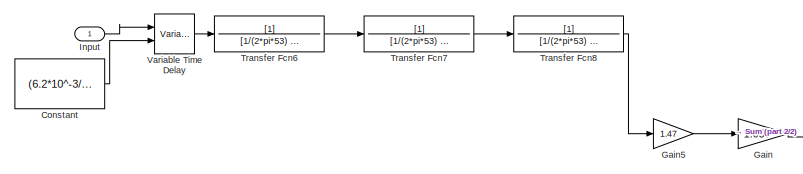
[diagram: root canvas - part 1/2, top left region]
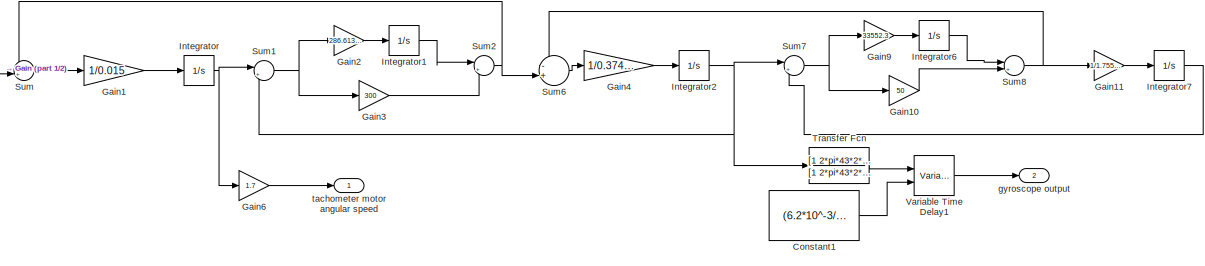
[diagram: root canvas - part 2/2, middle right region]
MODEL slx_f37e9482a6b2
KIND model
CONFIG AbsTol = auto
CONFIG EnableMultiTasking = off
CONFIG FixedStep = auto
CONFIG MaxStep = auto
CONFIG MinStep = auto
CONFIG RelTol = 1e-3
CONFIG SampleTimeConstraint = Unconstrained
CONFIG SolverName = VariableStepAuto
CONFIG StartTime = 0.0
CONFIG StopTime = 10.0
BLOCK [Constant] Constant
  SampleTime = -1
  Value = (6.2*10^-3/1.9)*1.2
BLOCK [Constant] Constant1
  SampleTime = -1
  Value = (6.2*10^-3/1.9)*1.8
BLOCK [Gain] Gain
  Gain = 1.057
BLOCK [Gain] Gain1
  Gain = 1/0.015
BLOCK [Gain] Gain10
  Gain = 50
BLOCK [Gain] Gain11
  Gain = 1/1.755970068
BLOCK [Gain] Gain2
  Gain = 286.6133118
BLOCK [Gain] Gain3
  Gain = 300
BLOCK [Gain] Gain4
  Gain = 1/0.374029932
BLOCK [Gain] Gain5
  Gain = 1.47
BLOCK [Gain] Gain6
  Gain = 1.7
BLOCK [Gain] Gain9
  Gain = 33552.3
BLOCK [Inport] Input
BLOCK [Integrator] Integrator
  Ports = [1, 1]
BLOCK [Integrator] Integrator1
  Ports = [1, 1]
BLOCK [Integrator] Integrator2
  Ports = [1, 1]
BLOCK [Integrator] Integrator6
  Ports = [1, 1]
BLOCK [Integrator] Integrator7
  Ports = [1, 1]
BLOCK [Sum] Sum
  Inputs = -+|
  Ports = [2, 1]
BLOCK [Sum] Sum1
  Inputs = |+-
  Ports = [2, 1]
BLOCK [Sum] Sum2
  Inputs = |++
  Ports = [2, 1]
BLOCK [Sum] Sum6
  Inputs = -+|
  Ports = [2, 1]
BLOCK [Sum] Sum7
  Inputs = |+-
  Ports = [2, 1]
BLOCK [Sum] Sum8
  Inputs = |++
  Ports = [2, 1]
BLOCK [TransferFcn] Transfer Fcn
  Denominator = [1 2*pi*43*2*0.4  (2*pi*43)^2]
  Numerator = [1 2*pi*43*2*4 (2*pi*43)^2]
BLOCK [TransferFcn] Transfer Fcn6
  Denominator = [1/(2*pi*53) 1]
BLOCK [TransferFcn] Transfer Fcn7
  Denominator = [1/(2*pi*53) 1]
BLOCK [TransferFcn] Transfer Fcn8
  Denominator = [1/(2*pi*53) 1]
BLOCK [VariableTransportDelay] Variable Time Delay
  MaximumDelay = 10
  Ports = [2, 1]
  TransDelayFeedthrough = on
BLOCK [VariableTransportDelay] Variable Time Delay1
  MaximumDelay = 10
  Ports = [2, 1]
  TransDelayFeedthrough = on
BLOCK [Outport] gyroscope output
  Port = 2
BLOCK [Outport] tachometer motor angular speed
LINE Constant1:1 -> Variable Time Delay1:2
LINE Constant:1 -> Variable Time Delay:2
LINE Gain10:1 -> Sum8:2
LINE Gain11:1 -> Integrator7:1
LINE Gain1:1 -> Integrator:1
LINE Gain2:1 -> Integrator1:1
LINE Gain3:1 -> Sum2:2
LINE Gain4:1 -> Integrator2:1
LINE Gain5:1 -> Gain:1
LINE Gain6:1 -> tachometer motor angular speed:1
LINE Gain9:1 -> Integrator6:1
LINE Gain:1 -> Sum:2
LINE Input:1 -> Variable Time Delay:1
LINE Integrator1:1 -> Sum2:1
NET Integrator2:1 -> Sum1:2, Sum7:1, Transfer Fcn:1
LINE Integrator6:1 -> Sum8:1
LINE Integrator7:1 -> Sum7:2
NET Integrator:1 -> Gain6:1, Sum1:1
NET Sum1:1 -> Gain2:1, Gain3:1
NET Sum2:1 -> Sum6:2, Sum:1
LINE Sum6:1 -> Gain4:1
NET Sum7:1 -> Gain10:1, Gain9:1
NET Sum8:1 -> Gain11:1, Sum6:1
LINE Sum:1 -> Gain1:1
LINE Transfer Fcn6:1 -> Transfer Fcn7:1
LINE Transfer Fcn7:1 -> Transfer Fcn8:1
LINE Transfer Fcn8:1 -> Gain5:1
LINE Transfer Fcn:1 -> Variable Time Delay1:1
LINE Variable Time Delay1:1 -> gyroscope output:1
LINE Variable Time Delay:1 -> Transfer Fcn6:1
note: NET lines group one-source signal fan-out (src -> all destinations, sorted); 1:1 wires keep LINE
